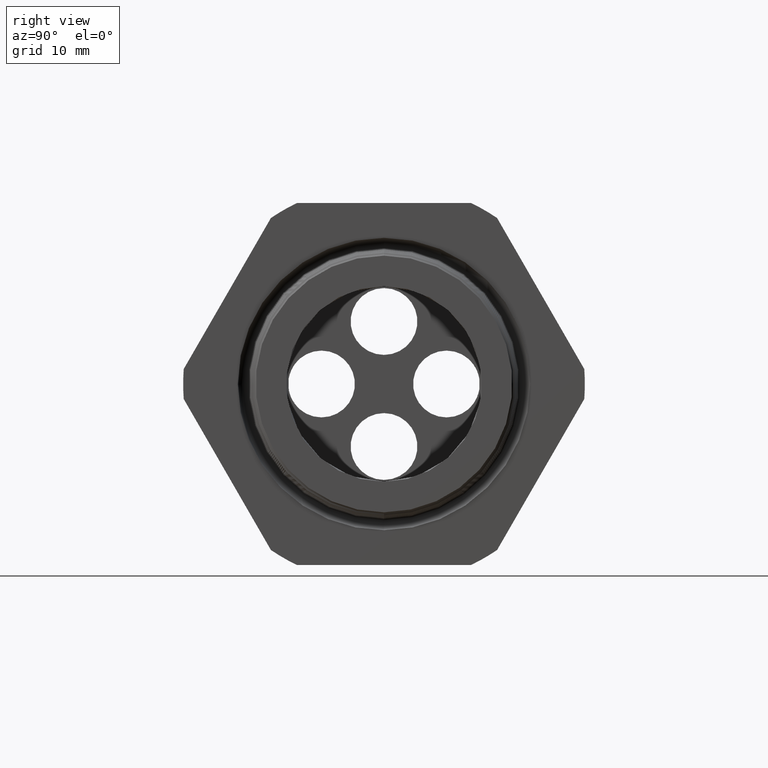
[diagram: clean part render]
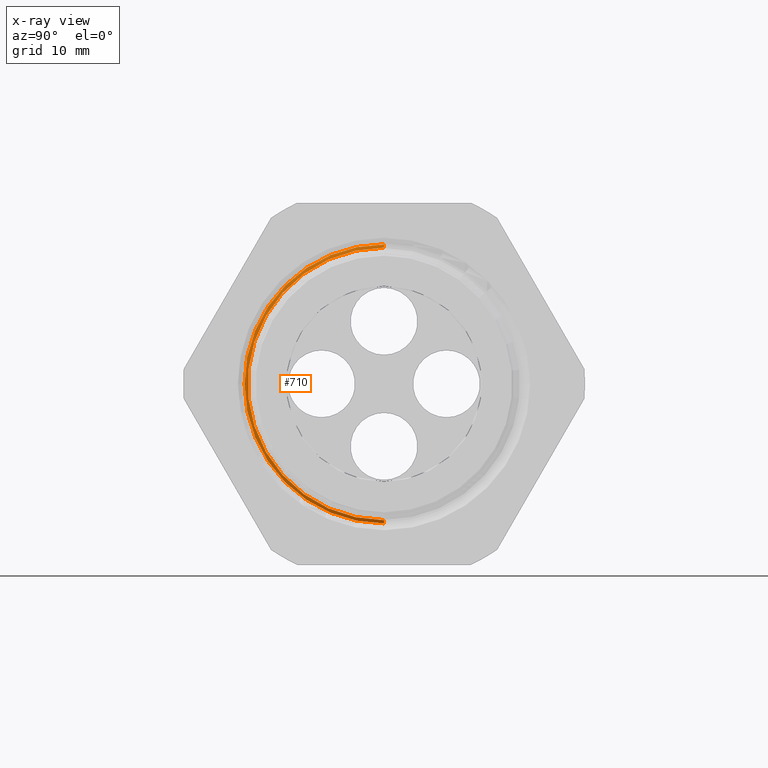
[diagram: x-ray — body ghosted, one internal face saturated and labeled with its STEP entity id]
A machine part, right view, then the same camera in x-ray: the body is ghosted and one INTERNAL B-rep face — a face not visible from any outside direction — is saturated and labeled: STEP entity #710.
In plain terms, the highlighted conical surface has half-angle 62 deg.
Its self-contained STEP definition (entity closure, byte-faithful):
#349 = VERTEX_POINT ( 'NONE', #2039 ) ;
#350 = VERTEX_POINT ( 'NONE', #2038 ) ;
#401 = EDGE_CURVE ( 'NONE', #349, #402, #2134, .T. ) ;
#402 = VERTEX_POINT ( 'NONE', #2130 ) ;
#405 = VERTEX_POINT ( 'NONE', #2185 ) ;
#407 = EDGE_CURVE ( 'NONE', #350, #405, #2184, .T. ) ;
#710 = ADVANCED_FACE ( 'NONE', ( #2566 ), #2565, .T. ) ;
#711 = EDGE_LOOP ( 'NONE', ( #712, #713, #715, #716 ) ) ;
#712 = ORIENTED_EDGE ( 'NONE', *, *, #401, .F. ) ;
#713 = ORIENTED_EDGE ( 'NONE', *, *, #714, .F. ) ;
#714 = EDGE_CURVE ( 'NONE', #350, #349, #2560, .T. ) ;
#715 = ORIENTED_EDGE ( 'NONE', *, *, #407, .T. ) ;
#716 = ORIENTED_EDGE ( 'NONE', *, *, #3603, .T. ) ;
#2038 = CARTESIAN_POINT ( 'NONE',  ( -0.6067624839723554400, 0.0000000000000000000, 0.4895114984791283900 ) ) ;
#2039 = CARTESIAN_POINT ( 'NONE',  ( -0.6067624839723554400, 6.065888310177427100E-017, -0.4895114984791283900 ) ) ;
#2130 = CARTESIAN_POINT ( 'NONE',  ( -0.6129365566449482800, 6.140457212240825100E-017, -0.5011232403534451300 ) ) ;
#2131 = DIRECTION ( 'NONE',  ( -0.4694715627859013000, 1.081298943409538600E-016, -0.8829475928589214400 ) ) ;
#2132 = VECTOR ( 'NONE', #2131, 39.37007874015748100 ) ;
#2133 = CARTESIAN_POINT ( 'NONE',  ( -0.6203149606299212000, 6.306931015608869800E-017, -0.5150000000000000100 ) ) ;
#2134 = LINE ( 'NONE', #2133, #2132 ) ;
#2181 = DIRECTION ( 'NONE',  ( -0.4694715627859013000, 0.0000000000000000000, 0.8829475928589214400 ) ) ;
#2182 = VECTOR ( 'NONE', #2181, 39.37007874015748100 ) ;
#2183 = CARTESIAN_POINT ( 'NONE',  ( -0.6203149606299212000, 0.0000000000000000000, 0.5150000000000000100 ) ) ;
#2184 = LINE ( 'NONE', #2183, #2182 ) ;
#2185 = CARTESIAN_POINT ( 'NONE',  ( -0.6129365566449482800, 0.0000000000000000000, 0.5011232403534451300 ) ) ;
#2557 = DIRECTION ( 'NONE',  ( 0.0000000000000000000, 0.0000000000000000000, -1.000000000000000000 ) ) ;
#2558 = DIRECTION ( 'NONE',  ( 1.000000000000000000, 0.0000000000000000000, 0.0000000000000000000 ) ) ;
#2559 = AXIS2_PLACEMENT_3D ( 'NONE', #2564, #2558, #2557 ) ;
#2560 = CIRCLE ( 'NONE', #2559, 0.4895114984791283900 ) ;
#2561 = DIRECTION ( 'NONE',  ( 0.0000000000000000000, 0.0000000000000000000, 1.000000000000000000 ) ) ;
#2562 = DIRECTION ( 'NONE',  ( -1.000000000000000000, 0.0000000000000000000, 0.0000000000000000000 ) ) ;
#2563 = AXIS2_PLACEMENT_3D ( 'NONE', #2571, #2562, #2561 ) ;
#2564 = CARTESIAN_POINT ( 'NONE',  ( -0.6067624839723554400, 0.0000000000000000000, 0.0000000000000000000 ) ) ;
#2565 = CONICAL_SURFACE ( 'NONE', #2563, 0.5150000000000000100, 1.082104136236472500 ) ;
#2566 = FACE_OUTER_BOUND ( 'NONE', #711, .T. ) ;
#2571 = CARTESIAN_POINT ( 'NONE',  ( -0.6203149606299212000, 0.0000000000000000000, 0.0000000000000000000 ) ) ;
#3603 = EDGE_CURVE ( 'NONE', #405, #402, #4318, .T. ) ;
#4314 = DIRECTION ( 'NONE',  ( 0.0000000000000000000, 0.0000000000000000000, 1.000000000000000000 ) ) ;
#4315 = DIRECTION ( 'NONE',  ( 1.000000000000000000, 0.0000000000000000000, 0.0000000000000000000 ) ) ;
#4316 = CARTESIAN_POINT ( 'NONE',  ( -0.6129365566449482800, 0.0000000000000000000, 0.0000000000000000000 ) ) ;
#4317 = AXIS2_PLACEMENT_3D ( 'NONE', #4316, #4315, #4314 ) ;
#4318 = CIRCLE ( 'NONE', #4317, 0.5011232403534451300 ) ;